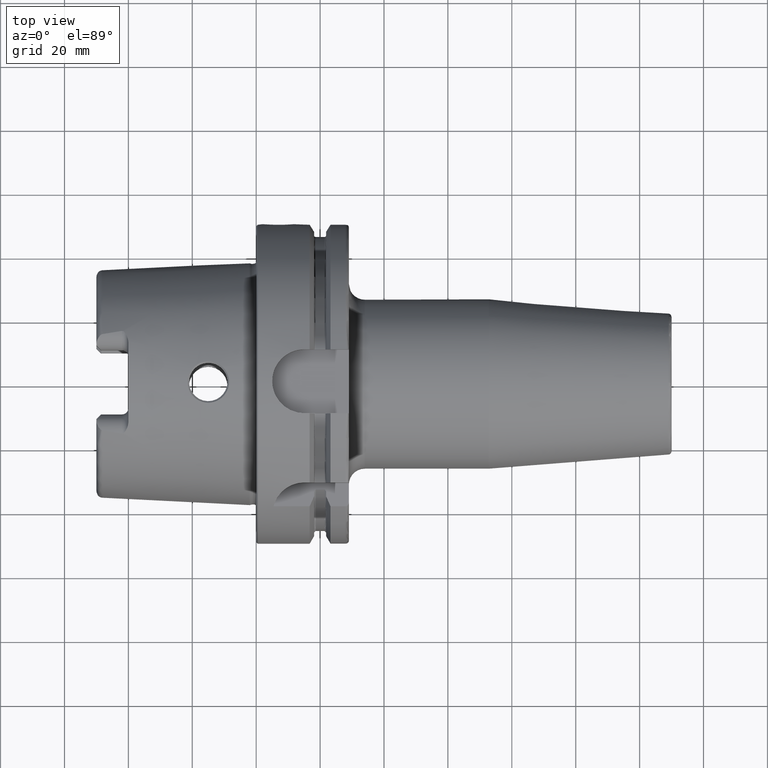
[diagram: clean part render]
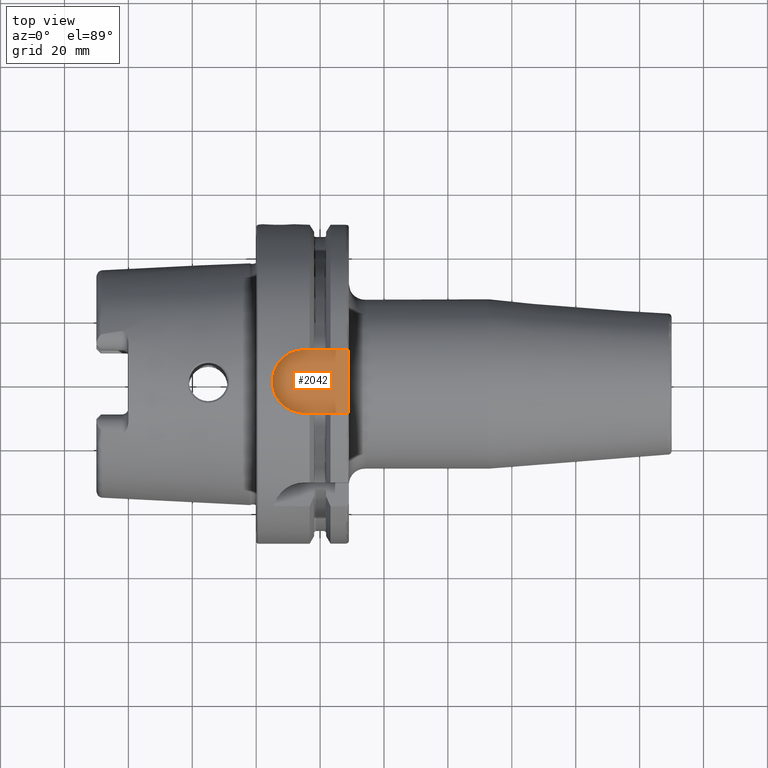
[diagram: same view with one face highlighted and labeled with its STEP entity id]
A machine part, top view. The second image highlights one B-rep face of the part: STEP entity #2042.
In plain terms, the highlighted planar face has unit normal (0, 0, 1).
Its self-contained STEP definition (entity closure, byte-faithful):
#123=PLANE('',#2273);
#280=FACE_OUTER_BOUND('',#408,.T.);
#408=EDGE_LOOP('',(#1739,#1740,#1741,#1742));
#470=LINE('',#3053,#577);
#543=LINE('',#4303,#650);
#546=LINE('',#4310,#653);
#577=VECTOR('',#2434,10.);
#650=VECTOR('',#2771,10.);
#653=VECTOR('',#2780,10.);
#753=CIRCLE('',#2271,10.);
#824=VERTEX_POINT('',#3050);
#825=VERTEX_POINT('',#3052);
#974=VERTEX_POINT('',#4302);
#975=VERTEX_POINT('',#4306);
#1035=EDGE_CURVE('',#824,#825,#470,.T.);
#1245=EDGE_CURVE('',#974,#825,#543,.T.);
#1247=EDGE_CURVE('',#975,#974,#753,.T.);
#1249=EDGE_CURVE('',#824,#975,#546,.T.);
#1739=ORIENTED_EDGE('',*,*,#1249,.T.);
#1740=ORIENTED_EDGE('',*,*,#1247,.T.);
#1741=ORIENTED_EDGE('',*,*,#1245,.T.);
#1742=ORIENTED_EDGE('',*,*,#1035,.F.);
#2042=ADVANCED_FACE('',(#280),#123,.T.);
#2271=AXIS2_PLACEMENT_3D('',#4307,#2775,#2776);
#2273=AXIS2_PLACEMENT_3D('',#4311,#2781,#2782);
#2434=DIRECTION('',(0.,-1.,0.));
#2771=DIRECTION('',(1.,7.93016446160826E-17,0.));
#2775=DIRECTION('center_axis',(0.,0.,1.));
#2776=DIRECTION('ref_axis',(0.,1.,0.));
#2780=DIRECTION('',(-1.,0.,0.));
#2781=DIRECTION('center_axis',(0.,0.,1.));
#2782=DIRECTION('ref_axis',(1.,0.,0.));
#3050=CARTESIAN_POINT('',(29.,10.,44.));
#3052=CARTESIAN_POINT('',(29.,-10.,44.));
#3053=CARTESIAN_POINT('',(29.,0.,44.));
#4302=CARTESIAN_POINT('',(15.,-10.,44.));
#4303=CARTESIAN_POINT('',(15.,-10.,44.));
#4306=CARTESIAN_POINT('',(15.,10.,44.));
#4307=CARTESIAN_POINT('Origin',(15.,0.,44.));
#4310=CARTESIAN_POINT('',(29.,10.,44.));
#4311=CARTESIAN_POINT('Origin',(17.,0.,44.));